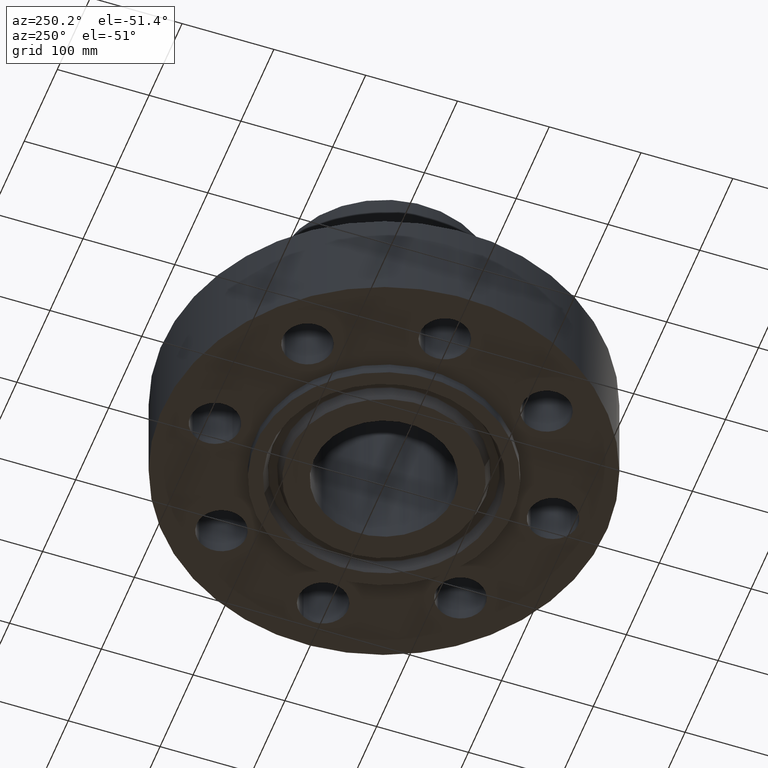
[diagram: clean part render]
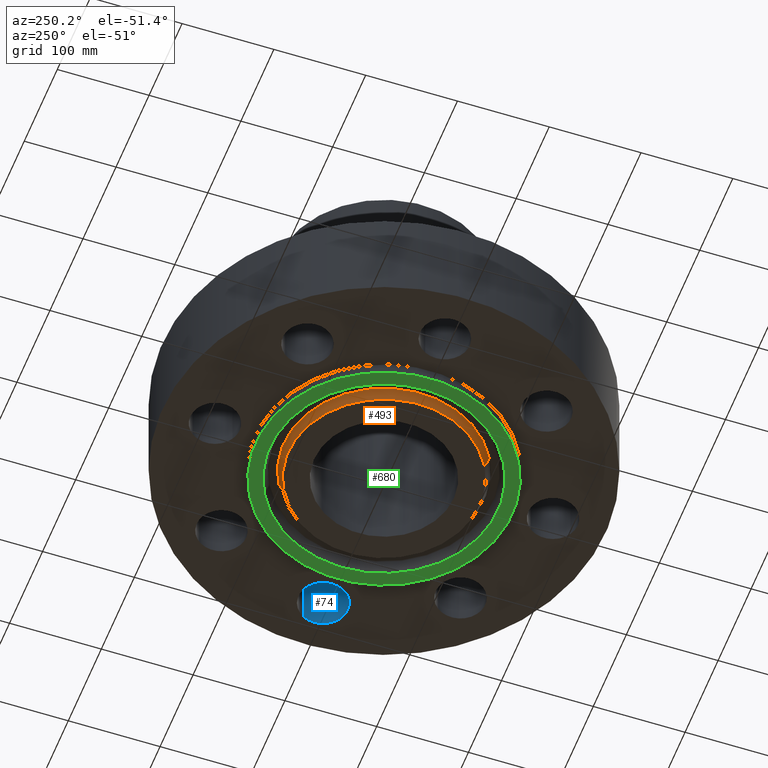
[diagram: same view with three faces highlighted in distinct colors, each labeled with its STEP entity id]
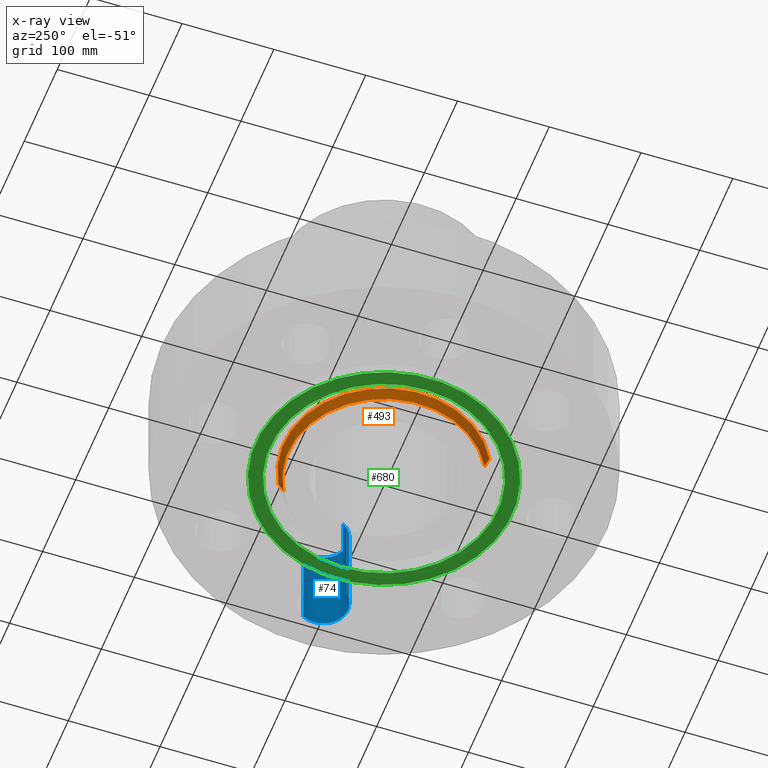
[diagram: x-ray of the same camera — body ghosted, the three highlighted faces saturated]
A machine part, auxiliary view with three faces highlighted in distinct colors.
The next image is the same camera in x-ray (body ghosted, the three faces saturated) — at least one of them is partly hidden behind the body in this view.
Their STEP definitions:

[orange] entity #493 — the highlighted conical surface has half-angle 23 deg.
#442=AXIS2_PLACEMENT_3D('Circle Axis2P3D',#440,#441,$) ;
#466=AXIS2_PLACEMENT_3D('Cone Axis2P3D',#463,#464,#465) ;
#477=AXIS2_PLACEMENT_3D('Circle Axis2P3D',#475,#476,$) ;
#440=CARTESIAN_POINT('Axis2P3D Location',(0.,0.,-0.500000000002)) ;
#444=CARTESIAN_POINT('Vertex',(-1.9701992509,-3.6064255381,-0.500000000002)) ;
#446=CARTESIAN_POINT('Vertex',(1.9701992509,3.6064255381,-0.500000000002)) ;
#463=CARTESIAN_POINT('Axis2P3D Location',(0.,0.,-0.500000000002)) ;
#468=CARTESIAN_POINT('Line Origine',(-2.0171696239,-3.69240422917,-0.269191969454)) ;
#472=CARTESIAN_POINT('Vertex',(-2.06413999691,-3.77838292023,-0.0383839389053)) ;
#475=CARTESIAN_POINT('Axis2P3D Location',(0.,0.,-0.0383839389053)) ;
#479=CARTESIAN_POINT('Vertex',(2.06413999691,3.77838292023,-0.0383839389053)) ;
#482=CARTESIAN_POINT('Line Origine',(2.0171696239,3.69240422917,-0.269191969454)) ;
#441=DIRECTION('Axis2P3D Direction',(0.,0.,-0.0393700787402)) ;
#464=DIRECTION('Axis2P3D Direction',(-0.,-0.,0.0393700787402)) ;
#465=DIRECTION('Axis2P3D XDirection',(-0.0188750212049,-0.0345504945626,0.)) ;
#469=DIRECTION('Vector Direction',(-0.00737505833565,-0.0134999537303,0.0362403485611)) ;
#476=DIRECTION('Axis2P3D Direction',(-0.,0.,0.0393700787402)) ;
#483=DIRECTION('Vector Direction',(0.00737505833565,0.0134999537303,0.0362403485611)) ;
#470=VECTOR('Line Direction',#469,0.0393700787402) ;
#484=VECTOR('Line Direction',#483,0.0393700787402) ;
#488=ORIENTED_EDGE('',*,*,#448,.F.) ;
#489=ORIENTED_EDGE('',*,*,#474,.T.) ;
#490=ORIENTED_EDGE('',*,*,#481,.T.) ;
#491=ORIENTED_EDGE('',*,*,#486,.F.) ;
#493=ADVANCED_FACE('PartBody',(#492),#467,.T.) ;
#443=CIRCLE('generated circle',#442,4.10950000002) ;
#478=CIRCLE('generated circle',#477,4.30544439271) ;
#467=CONICAL_SURFACE('Cone',#466,4.10950000002,0.401425727959) ;
#448=EDGE_CURVE('',#445,#447,#443,.T.) ;
#474=EDGE_CURVE('',#445,#473,#471,.T.) ;
#481=EDGE_CURVE('',#473,#480,#478,.F.) ;
#486=EDGE_CURVE('',#447,#480,#485,.T.) ;
#487=EDGE_LOOP('',(#488,#489,#490,#491)) ;
#492=FACE_OUTER_BOUND('',#487,.T.) ;
#471=LINE('Line',#468,#470) ;
#485=LINE('Line',#482,#484) ;
#445=VERTEX_POINT('',#444) ;
#447=VERTEX_POINT('',#446) ;
#473=VERTEX_POINT('',#472) ;
#480=VERTEX_POINT('',#479) ;

[blue] entity #74 — the highlighted cylindrical surface (edge-blend (fillet) strip) has radius 26.924 mm, axis along (0, -0, 1).
#38=AXIS2_PLACEMENT_3D('Cylinder Axis2P3D',#35,#36,#37) ;
#51=AXIS2_PLACEMENT_3D('Circle Axis2P3D',#49,#50,$) ;
#65=AXIS2_PLACEMENT_3D('Circle Axis2P3D',#63,#64,$) ;
#35=CARTESIAN_POINT('Axis2P3D Location',(7.25000000003,0.,0.00393700787402)) ;
#40=CARTESIAN_POINT('Line Origine',(6.31976248442,-0.508191070922,2.12500000001)) ;
#44=CARTESIAN_POINT('Vertex',(6.31976248442,-0.508191070922,4.25000000002)) ;
#46=CARTESIAN_POINT('Vertex',(6.31976248442,-0.508191070922,2.2401153548E-016)) ;
#49=CARTESIAN_POINT('Axis2P3D Location',(7.25000000003,0.,4.25000000002)) ;
#53=CARTESIAN_POINT('Vertex',(8.18023751564,0.508191070922,4.25000000002)) ;
#56=CARTESIAN_POINT('Line Origine',(8.18023751564,0.508191070922,2.12500000001)) ;
#60=CARTESIAN_POINT('Vertex',(8.18023751564,0.508191070922,2.2401153548E-016)) ;
#63=CARTESIAN_POINT('Axis2P3D Location',(7.25000000003,0.,0.)) ;
#36=DIRECTION('Axis2P3D Direction',(0.,-0.,0.0393700787402)) ;
#37=DIRECTION('Axis2P3D XDirection',(0.0345504945626,0.0188750212049,0.)) ;
#41=DIRECTION('Vector Direction',(0.,0.,0.0393700787402)) ;
#50=DIRECTION('Axis2P3D Direction',(0.,-0.,0.0393700787402)) ;
#57=DIRECTION('Vector Direction',(0.,0.,0.0393700787402)) ;
#64=DIRECTION('Axis2P3D Direction',(0.,-0.,0.0393700787402)) ;
#42=VECTOR('Line Direction',#41,0.0393700787402) ;
#58=VECTOR('Line Direction',#57,0.0393700787402) ;
#69=ORIENTED_EDGE('',*,*,#48,.F.) ;
#70=ORIENTED_EDGE('',*,*,#55,.F.) ;
#71=ORIENTED_EDGE('',*,*,#62,.T.) ;
#72=ORIENTED_EDGE('',*,*,#67,.T.) ;
#74=ADVANCED_FACE('PartBody',(#73),#39,.F.) ;
#52=CIRCLE('generated circle',#51,1.06) ;
#66=CIRCLE('generated circle',#65,1.06) ;
#39=CYLINDRICAL_SURFACE('generated cylinder',#38,1.06) ;
#48=EDGE_CURVE('',#45,#47,#43,.F.) ;
#55=EDGE_CURVE('',#54,#45,#52,.F.) ;
#62=EDGE_CURVE('',#54,#61,#59,.F.) ;
#67=EDGE_CURVE('',#61,#47,#66,.F.) ;
#68=EDGE_LOOP('',(#69,#70,#71,#72)) ;
#73=FACE_OUTER_BOUND('',#68,.T.) ;
#43=LINE('Line',#40,#42) ;
#59=LINE('Line',#56,#58) ;
#45=VERTEX_POINT('',#44) ;
#47=VERTEX_POINT('',#46) ;
#54=VERTEX_POINT('',#53) ;
#61=VERTEX_POINT('',#60) ;

[green] entity #680 — the highlighted planar face has unit normal (0, 0, -1).
#438=AXIS2_PLACEMENT_3D('Plane Axis2P3D',#435,#436,#437) ;
#629=AXIS2_PLACEMENT_3D('Circle Axis2P3D',#627,#628,$) ;
#648=AXIS2_PLACEMENT_3D('Circle Axis2P3D',#646,#647,$) ;
#660=AXIS2_PLACEMENT_3D('Circle Axis2P3D',#658,#659,$) ;
#669=AXIS2_PLACEMENT_3D('Circle Axis2P3D',#667,#668,$) ;
#435=CARTESIAN_POINT('Axis2P3D Location',(0.,3.00000000001,-0.500000000002)) ;
#624=CARTESIAN_POINT('Vertex',(-2.34463059655,-4.29181751894,-0.500000000002)) ;
#627=CARTESIAN_POINT('Axis2P3D Location',(0.,0.,-0.500000000002)) ;
#631=CARTESIAN_POINT('Vertex',(2.34463059655,4.29181751894,-0.500000000002)) ;
#646=CARTESIAN_POINT('Axis2P3D Location',(0.,0.,-0.500000000002)) ;
#658=CARTESIAN_POINT('Axis2P3D Location',(0.,0.,-0.500000000002)) ;
#662=CARTESIAN_POINT('Vertex',(-2.63684046233,-4.82670409042,-0.500000000002)) ;
#664=CARTESIAN_POINT('Vertex',(2.63684046233,4.82670409042,-0.500000000002)) ;
#667=CARTESIAN_POINT('Axis2P3D Location',(0.,0.,-0.500000000002)) ;
#436=DIRECTION('Axis2P3D Direction',(0.,0.,-0.0393700787402)) ;
#437=DIRECTION('Axis2P3D XDirection',(0.0393700787402,0.,0.)) ;
#628=DIRECTION('Axis2P3D Direction',(0.,0.,-0.0393700787402)) ;
#647=DIRECTION('Axis2P3D Direction',(0.,0.,-0.0393700787402)) ;
#659=DIRECTION('Axis2P3D Direction',(0.,0.,-0.0393700787402)) ;
#668=DIRECTION('Axis2P3D Direction',(0.,0.,-0.0393700787402)) ;
#673=ORIENTED_EDGE('',*,*,#666,.T.) ;
#674=ORIENTED_EDGE('',*,*,#671,.T.) ;
#677=ORIENTED_EDGE('',*,*,#650,.F.) ;
#678=ORIENTED_EDGE('',*,*,#633,.F.) ;
#679=FACE_BOUND('',#676,.T.) ;
#680=ADVANCED_FACE('PartBody',(#675,#679),#439,.T.) ;
#630=CIRCLE('generated circle',#629,4.89050000002) ;
#649=CIRCLE('generated circle',#648,4.89050000002) ;
#661=CIRCLE('generated circle',#660,5.50000000002) ;
#670=CIRCLE('generated circle',#669,5.50000000002) ;
#633=EDGE_CURVE('',#625,#632,#630,.T.) ;
#650=EDGE_CURVE('',#632,#625,#649,.T.) ;
#666=EDGE_CURVE('',#663,#665,#661,.T.) ;
#671=EDGE_CURVE('',#665,#663,#670,.T.) ;
#672=EDGE_LOOP('',(#673,#674)) ;
#676=EDGE_LOOP('',(#677,#678)) ;
#675=FACE_OUTER_BOUND('',#672,.T.) ;
#439=PLANE('',#438) ;
#625=VERTEX_POINT('',#624) ;
#632=VERTEX_POINT('',#631) ;
#663=VERTEX_POINT('',#662) ;
#665=VERTEX_POINT('',#664) ;